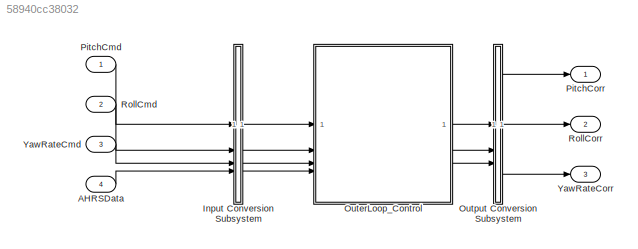
MODEL slx_58940cc38032
KIND model
CONFIG AbsTol = auto
CONFIG EnableMultiTasking = on
CONFIG FixedStep = auto
CONFIG MaxStep = auto
CONFIG MinStep = auto
CONFIG RelTol = 1e-3
CONFIG SampleTimeConstraint = Unconstrained
CONFIG SolverName = FixedStepDiscrete
CONFIG StartTime = 0.0
CONFIG StopTime = 10.0
BLOCK [Inport] AHRSData
  OutDataTypeStr = double
  Port = 4
  PortDimensions = [5]
  SampleTime = 0.01
  SignalType = real
  VarSizeSig = No
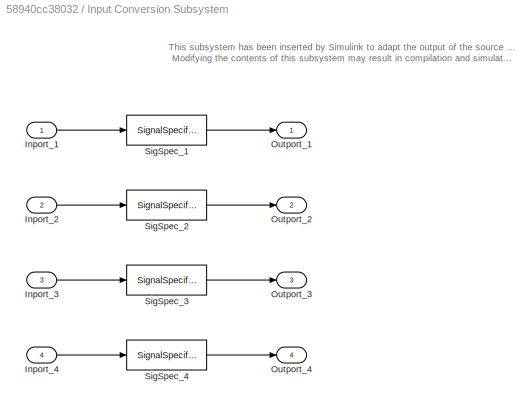
BLOCK [SubSystem] Input Conversion Subsystem
  AttributesFormatString = %<Description>
  Description = Signal spec.\nand routing
  Permissions = ReadOnly
  PermitHierarchicalResolution = ExplicitOnly
  Tag = __SLT_ICS__
  UserDataPersistent = on
BLOCK [Inport] Input Conversion Subsystem/Inport_1
BLOCK [Inport] Input Conversion Subsystem/Inport_2
  Port = 2
BLOCK [Inport] Input Conversion Subsystem/Inport_3
  Port = 3
BLOCK [Inport] Input Conversion Subsystem/Inport_4
  Port = 4
BLOCK [Outport] Input Conversion Subsystem/Outport_1
BLOCK [Outport] Input Conversion Subsystem/Outport_2
  Port = 2
BLOCK [Outport] Input Conversion Subsystem/Outport_3
  Port = 3
BLOCK [Outport] Input Conversion Subsystem/Outport_4
  Port = 4
BLOCK [SignalSpecification] Input Conversion Subsystem/SigSpec_1
  Dimensions = [1]
  OutDataTypeStr = double
  SampleTime = 0.01
  SignalType = real
  VarSizeSig = No
BLOCK [SignalSpecification] Input Conversion Subsystem/SigSpec_2
  Dimensions = [1]
  OutDataTypeStr = double
  SampleTime = 0.01
  SignalType = real
  VarSizeSig = No
BLOCK [SignalSpecification] Input Conversion Subsystem/SigSpec_3
  Dimensions = [1]
  OutDataTypeStr = double
  SampleTime = 0.01
  SignalType = real
  VarSizeSig = No
BLOCK [SignalSpecification] Input Conversion Subsystem/SigSpec_4
  Dimensions = [5]
  OutDataTypeStr = double
  SampleTime = 0.01
  SignalType = real
  VarSizeSig = No
BLOCK [ModelReference] OuterLoop_Control
  ModelNameDialog = OuterLoop_Control
  ModelReferenceVersion = 8.0
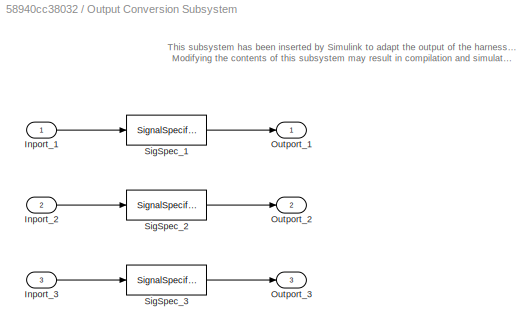
BLOCK [SubSystem] Output Conversion Subsystem
  AttributesFormatString = %<Description>
  Description = Signal spec.\nand routing
  Permissions = ReadOnly
  PermitHierarchicalResolution = ExplicitOnly
  Tag = __SLT_OCS__
  UserDataPersistent = on
BLOCK [Inport] Output Conversion Subsystem/Inport_1
BLOCK [Inport] Output Conversion Subsystem/Inport_2
  Port = 2
BLOCK [Inport] Output Conversion Subsystem/Inport_3
  Port = 3
BLOCK [Outport] Output Conversion Subsystem/Outport_1
BLOCK [Outport] Output Conversion Subsystem/Outport_2
  Port = 2
BLOCK [Outport] Output Conversion Subsystem/Outport_3
  Port = 3
BLOCK [SignalSpecification] Output Conversion Subsystem/SigSpec_1
  Dimensions = [1]
  OutDataTypeStr = double
  SampleTime = 0.01
  SignalType = real
  VarSizeSig = No
BLOCK [SignalSpecification] Output Conversion Subsystem/SigSpec_2
  Dimensions = [1]
  OutDataTypeStr = double
  SampleTime = 0.01
  SignalType = real
  VarSizeSig = No
BLOCK [SignalSpecification] Output Conversion Subsystem/SigSpec_3
  Dimensions = [1]
  OutDataTypeStr = double
  SampleTime = 0.01
  SignalType = real
  VarSizeSig = No
BLOCK [Inport] PitchCmd
  OutDataTypeStr = double
  PortDimensions = [1]
  SampleTime = 0.01
  SignalType = real
  VarSizeSig = No
BLOCK [Outport] PitchCorr
BLOCK [Inport] RollCmd
  OutDataTypeStr = double
  Port = 2
  PortDimensions = [1]
  SampleTime = 0.01
  SignalType = real
  VarSizeSig = No
BLOCK [Outport] RollCorr
  Port = 2
BLOCK [Inport] YawRateCmd
  OutDataTypeStr = double
  Port = 3
  PortDimensions = [1]
  SampleTime = 0.01
  SignalType = real
  VarSizeSig = No
BLOCK [Outport] YawRateCorr
  Port = 3
ANNOTATION Input Conversion Subsystem: This subsystem has been inserted by Simulink to adapt the output of the source blocks to the interface required by the harnessed component. Modifying the contents of this subsystem may result in compilation and simulation failure.
ANNOTATION Output Conversion Subsystem: This subsystem has been inserted by Simulink to adapt the output of the harnessed component to the interface required by the sink blocks. Modifying the contents of this subsystem may result in compilation and simulation failure.
LINE AHRSData:1 -> Input Conversion Subsystem:4
LINE Input Conversion Subsystem/Inport_1:1 -> Input Conversion Subsystem/SigSpec_1:1
LINE Input Conversion Subsystem/Inport_2:1 -> Input Conversion Subsystem/SigSpec_2:1
LINE Input Conversion Subsystem/Inport_3:1 -> Input Conversion Subsystem/SigSpec_3:1
LINE Input Conversion Subsystem/Inport_4:1 -> Input Conversion Subsystem/SigSpec_4:1
LINE Input Conversion Subsystem/SigSpec_1:1 -> Input Conversion Subsystem/Outport_1:1
LINE Input Conversion Subsystem/SigSpec_2:1 -> Input Conversion Subsystem/Outport_2:1
LINE Input Conversion Subsystem/SigSpec_3:1 -> Input Conversion Subsystem/Outport_3:1
LINE Input Conversion Subsystem/SigSpec_4:1 -> Input Conversion Subsystem/Outport_4:1
LINE Input Conversion Subsystem:1 -> OuterLoop_Control:1
LINE Input Conversion Subsystem:2 -> OuterLoop_Control:2
LINE Input Conversion Subsystem:3 -> OuterLoop_Control:3
LINE Input Conversion Subsystem:4 -> OuterLoop_Control:4
LINE OuterLoop_Control:1 -> Output Conversion Subsystem:1
LINE OuterLoop_Control:2 -> Output Conversion Subsystem:2
LINE OuterLoop_Control:3 -> Output Conversion Subsystem:3
LINE Output Conversion Subsystem/Inport_1:1 -> Output Conversion Subsystem/SigSpec_1:1
LINE Output Conversion Subsystem/Inport_2:1 -> Output Conversion Subsystem/SigSpec_2:1
LINE Output Conversion Subsystem/Inport_3:1 -> Output Conversion Subsystem/SigSpec_3:1
LINE Output Conversion Subsystem/SigSpec_1:1 -> Output Conversion Subsystem/Outport_1:1
LINE Output Conversion Subsystem/SigSpec_2:1 -> Output Conversion Subsystem/Outport_2:1
LINE Output Conversion Subsystem/SigSpec_3:1 -> Output Conversion Subsystem/Outport_3:1
LINE Output Conversion Subsystem:1 -> PitchCorr:1
LINE Output Conversion Subsystem:2 -> RollCorr:1
LINE Output Conversion Subsystem:3 -> YawRateCorr:1
LINE PitchCmd:1 -> Input Conversion Subsystem:1
LINE RollCmd:1 -> Input Conversion Subsystem:2
LINE YawRateCmd:1 -> Input Conversion Subsystem:3
